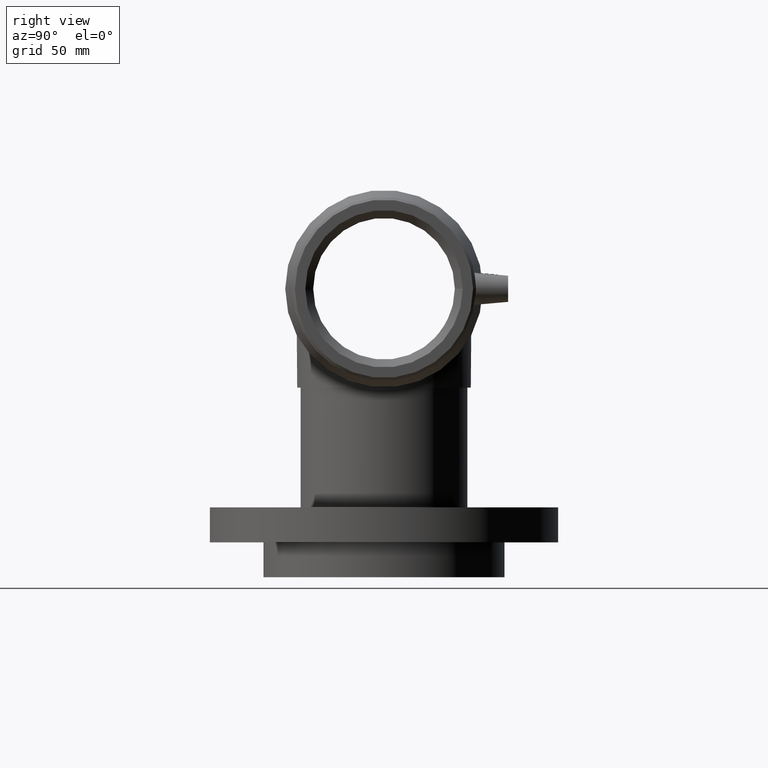
[diagram: clean part render]
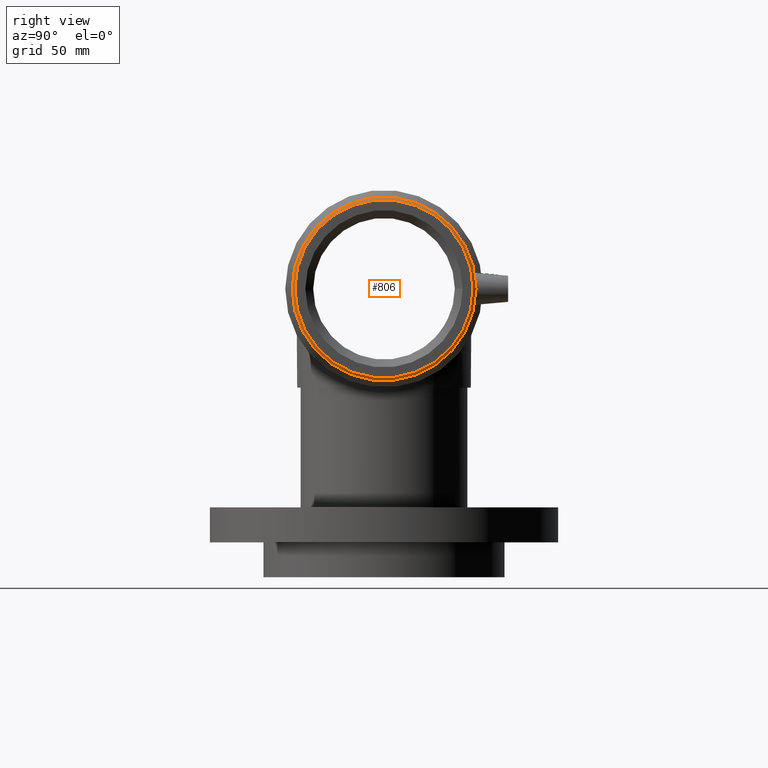
[diagram: same view with one face highlighted and labeled with its STEP entity id]
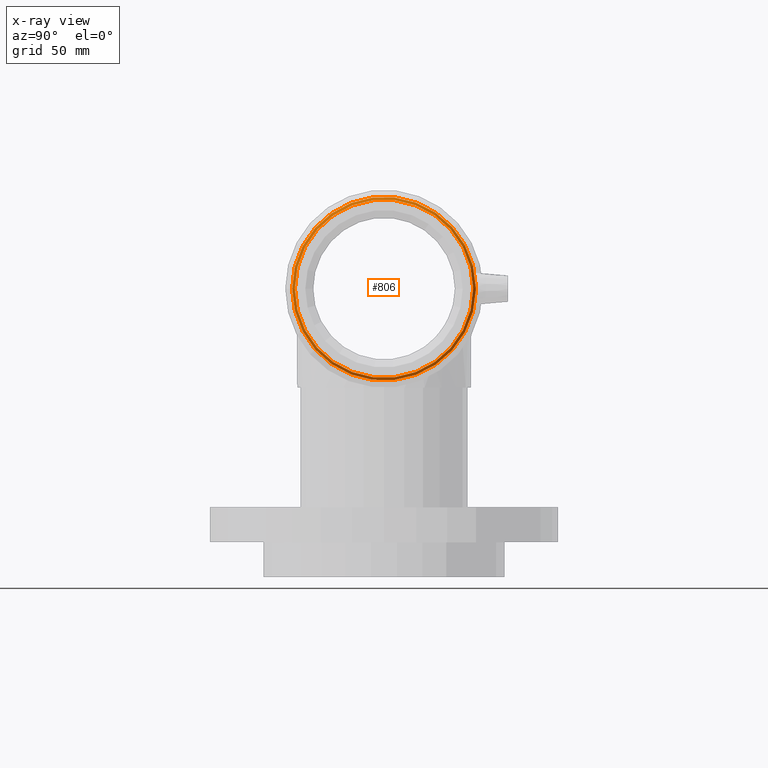
[diagram: x-ray of the same camera — body ghosted, the highlighted face saturated]
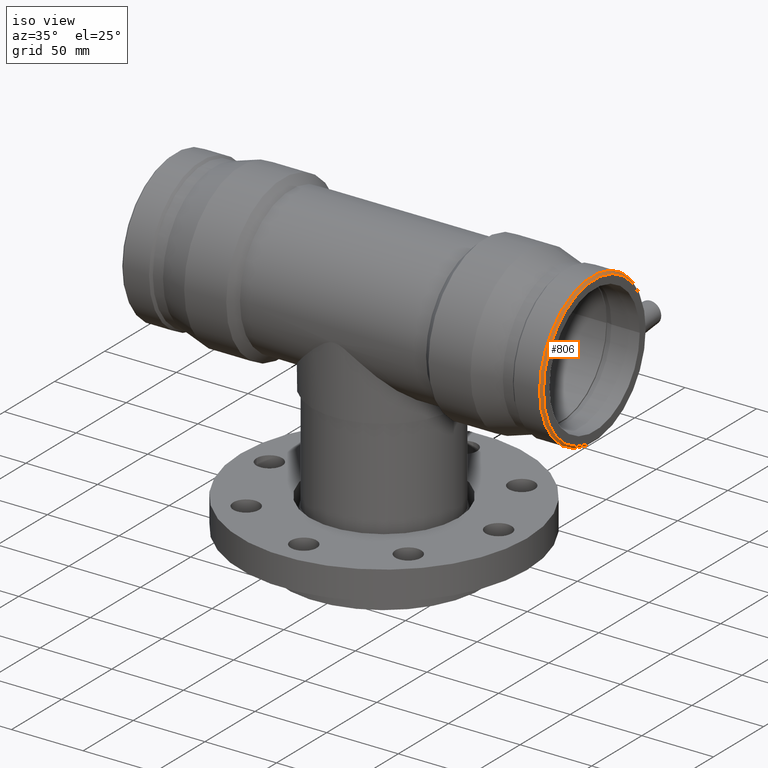
[diagram: same view with one face highlighted and labeled with its STEP entity id]
A machine part, right view. The second image highlights one B-rep face of the part: STEP entity #806.
The next image is the same camera in x-ray: the body ghosted, the highlighted face saturated — about 0% of this face is hidden behind the body in this view.
A second angle (iso view) of the same face is appended — the face is thin or edge-on in the first view.
In plain terms, the highlighted conical surface has half-angle 45 deg.
Its self-contained STEP definition (entity closure, byte-faithful):
#25=CONICAL_SURFACE('',#927,51.756825,44.9999999999998);
#103=FACE_BOUND('',#394,.T.);
#154=CIRCLE('',#888,52.545);
#157=CIRCLE('',#895,52.545);
#173=CIRCLE('',#928,50.96865);
#270=FACE_OUTER_BOUND('',#393,.T.);
#393=EDGE_LOOP('',(#726,#727));
#394=EDGE_LOOP('',(#728));
#475=VERTEX_POINT('',#1701);
#476=VERTEX_POINT('',#1702);
#496=VERTEX_POINT('',#1863);
#549=EDGE_CURVE('',#475,#476,#154,.T.);
#557=EDGE_CURVE('',#476,#475,#157,.T.);
#578=EDGE_CURVE('',#496,#496,#173,.T.);
#726=ORIENTED_EDGE('',*,*,#549,.T.);
#727=ORIENTED_EDGE('',*,*,#557,.T.);
#728=ORIENTED_EDGE('',*,*,#578,.F.);
#806=ADVANCED_FACE('',(#270,#103),#25,.T.);
#888=AXIS2_PLACEMENT_3D('',#1703,#1089,#1090);
#895=AXIS2_PLACEMENT_3D('',#1765,#1103,#1104);
#927=AXIS2_PLACEMENT_3D('',#1862,#1167,#1168);
#928=AXIS2_PLACEMENT_3D('',#1864,#1169,#1170);
#1089=DIRECTION('center_axis',(1.,0.,0.));
#1090=DIRECTION('ref_axis',(0.,0.,-1.));
#1103=DIRECTION('center_axis',(1.,0.,0.));
#1104=DIRECTION('ref_axis',(0.,0.,-1.));
#1167=DIRECTION('center_axis',(-1.,0.,0.));
#1168=DIRECTION('ref_axis',(0.,1.,0.));
#1169=DIRECTION('center_axis',(1.,0.,0.));
#1170=DIRECTION('ref_axis',(0.,0.,-1.));
#1701=CARTESIAN_POINT('',(145.42365,52.5378023591251,-0.869682858005089));
#1702=CARTESIAN_POINT('',(145.42365,52.5378023591251,0.869682858005089));
#1703=CARTESIAN_POINT('Origin',(145.42365,0.,0.));
#1765=CARTESIAN_POINT('Origin',(145.42365,0.,0.));
#1862=CARTESIAN_POINT('Origin',(146.211825,0.,0.));
#1863=CARTESIAN_POINT('',(147.,50.96865,0.));
#1864=CARTESIAN_POINT('Origin',(147.,0.,0.));